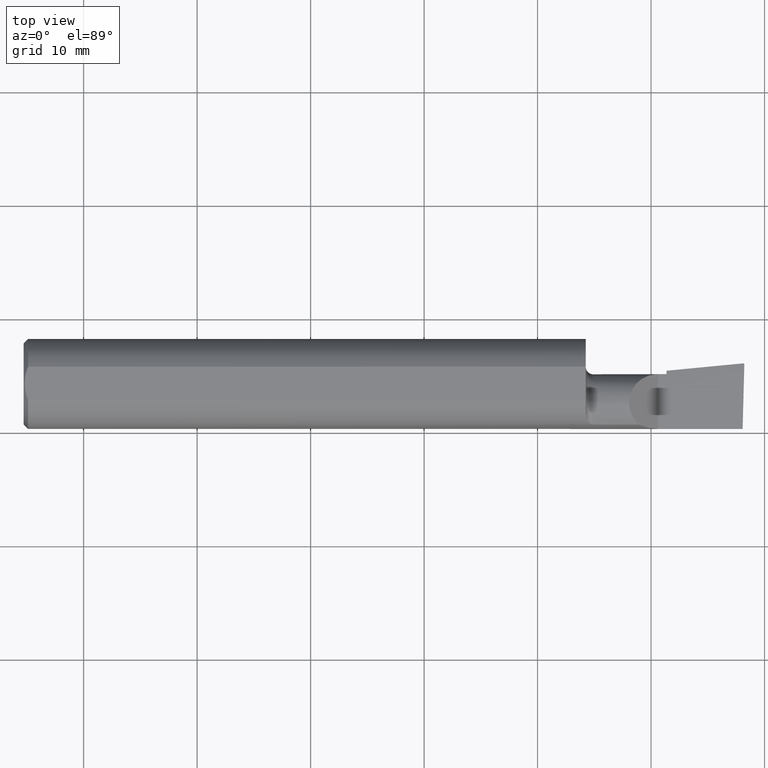
[diagram: clean part render]
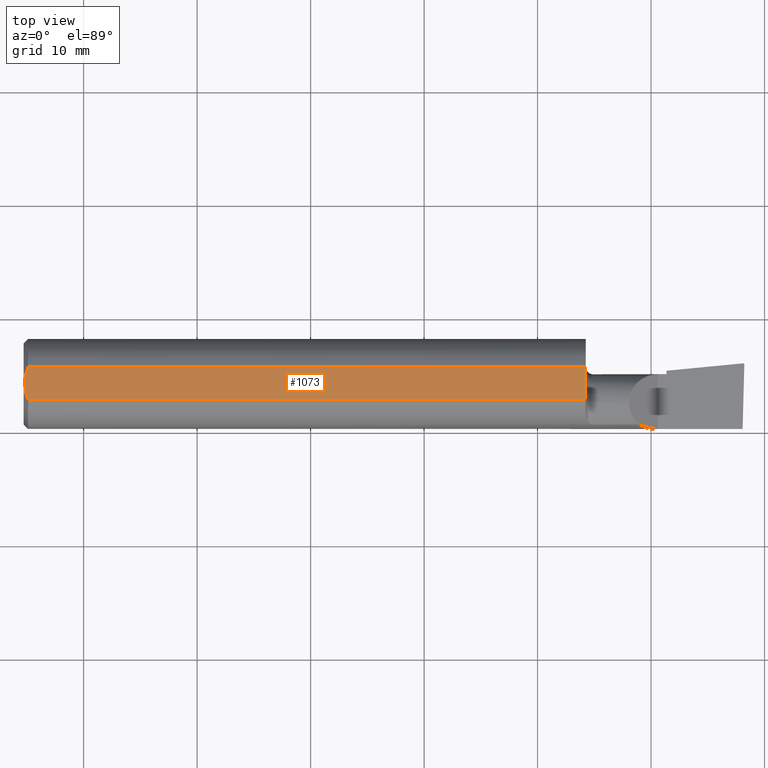
[diagram: same view with one face highlighted and labeled with its STEP entity id]
A machine part, top view. The second image highlights one B-rep face of the part: STEP entity #1073.
In plain terms, the highlighted planar face has unit normal (0, 0, -1).
Its self-contained STEP definition (entity closure, byte-faithful):
#32 = CARTESIAN_POINT ( 'NONE',  ( 0.2946835978831989777, -1.227949873118057589, 3.685539999999999150 ) ) ;
#38 = ORIENTED_EDGE ( 'NONE', *, *, #555, .F. ) ;
#59 = DIRECTION ( 'NONE',  ( -0.000000000000000000, 0.000000000000000000, -1.000000000000000000 ) ) ;
#77 = DIRECTION ( 'NONE',  ( 0.000000000000000000, -1.000000000000000000, 0.000000000000000000 ) ) ;
#116 = CARTESIAN_POINT ( 'NONE',  ( 63.50000000000000000, -1.462034237629201039, 3.685539999999999150 ) ) ;
#117 = CARTESIAN_POINT ( 'NONE',  ( 49.53000000000000114, -1.462034237629201483, 3.685539999999999150 ) ) ;
#136 = VERTEX_POINT ( 'NONE', #817 ) ;
#205 = CARTESIAN_POINT ( 'NONE',  ( 0.2247358976179796297, -0.9898225455501730163, 3.685539999999998706 ) ) ;
#219 = CARTESIAN_POINT ( 'NONE',  ( 0.3809999999999924558, 1.462034237629201039, 3.685539999999999150 ) ) ;
#239 = FACE_OUTER_BOUND ( 'NONE', #457, .T. ) ;
#246 = PLANE ( 'NONE',  #839 ) ;
#253 = VECTOR ( 'NONE', #77, 1000.000000000000000 ) ;
#266 = VERTEX_POINT ( 'NONE', #387 ) ;
#288 = CARTESIAN_POINT ( 'NONE',  ( 0.1015999999999284698, -0.2510152873235154125, 3.685539999999999150 ) ) ;
#295 = DIRECTION ( 'NONE',  ( -1.000000000000000000, -0.000000000000000000, -0.000000000000000000 ) ) ;
#324 = EDGE_CURVE ( 'NONE', #511, #1091, #1006, .T. ) ;
#330 = CARTESIAN_POINT ( 'NONE',  ( 0.1015999999999948056, 3.500044931498621813E-16, 3.685539999999999150 ) ) ;
#368 = B_SPLINE_CURVE_WITH_KNOTS ( 'NONE', 3,
 ( #1149, #288, #516, #205, #32, #592 ),
 .UNSPECIFIED., .F., .F.,
 ( 4, 2, 4 ),
 ( 0.004431269906162986494, 0.005173847132308764286, 0.005916424358454542079 ),
 .UNSPECIFIED. ) ;
#373 = ORIENTED_EDGE ( 'NONE', *, *, #756, .F. ) ;
#387 = CARTESIAN_POINT ( 'NONE',  ( 0.3809999999999924558, -1.462034237629201039, 3.685539999999999150 ) ) ;
#408 = CARTESIAN_POINT ( 'NONE',  ( 0.2235145214959431414, 0.9851334071146859994, 3.685539999999999594 ) ) ;
#419 = VERTEX_POINT ( 'NONE', #117 ) ;
#457 = EDGE_LOOP ( 'NONE', ( #1100, #38, #617, #905, #373 ) ) ;
#460 = CARTESIAN_POINT ( 'NONE',  ( 49.53000000000000114, 2.540000000000000480, 3.685539999999999150 ) ) ;
#478 = VECTOR ( 'NONE', #295, 1000.000000000000000 ) ;
#511 = VERTEX_POINT ( 'NONE', #533 ) ;
#516 = CARTESIAN_POINT ( 'NONE',  ( 0.1280887710546985137, -0.5028858476047466386, 3.685539999999999594 ) ) ;
#533 = CARTESIAN_POINT ( 'NONE',  ( 0.3809999999999924558, 1.462034237629201039, 3.685539999999999150 ) ) ;
#541 = LINE ( 'NONE', #1112, #838 ) ;
#555 = EDGE_CURVE ( 'NONE', #511, #136, #541, .T. ) ;
#592 = CARTESIAN_POINT ( 'NONE',  ( 0.3809999999999924558, -1.462034237629201039, 3.685539999999999150 ) ) ;
#617 = ORIENTED_EDGE ( 'NONE', *, *, #324, .T. ) ;
#642 = DIRECTION ( 'NONE',  ( -1.000000000000000000, 0.000000000000000000, 0.000000000000000000 ) ) ;
#644 = DIRECTION ( 'NONE',  ( 1.000000000000000000, 0.000000000000000000, 0.000000000000000000 ) ) ;
#756 = EDGE_CURVE ( 'NONE', #419, #266, #779, .T. ) ;
#779 = LINE ( 'NONE', #116, #478 ) ;
#817 = CARTESIAN_POINT ( 'NONE',  ( 49.53000000000000114, 1.462034237629201039, 3.685539999999999150 ) ) ;
#823 = CARTESIAN_POINT ( 'NONE',  ( 0.000000000000000000, 2.540000000000000480, 3.685539999999999150 ) ) ;
#838 = VECTOR ( 'NONE', #644, 1000.000000000000000 ) ;
#839 = AXIS2_PLACEMENT_3D ( 'NONE', #823, #59, #642 ) ;
#886 = CARTESIAN_POINT ( 'NONE',  ( 0.1015999999999299547, 0.2511217935535139389, 3.685539999999999150 ) ) ;
#894 = CARTESIAN_POINT ( 'NONE',  ( 0.1274433735584585836, 0.4981409861471362555, 3.685539999999998706 ) ) ;
#905 = ORIENTED_EDGE ( 'NONE', *, *, #933, .T. ) ;
#933 = EDGE_CURVE ( 'NONE', #1091, #266, #368, .T. ) ;
#959 = CARTESIAN_POINT ( 'NONE',  ( 0.1015999999999948056, 3.500044931498621813E-16, 3.685539999999999150 ) ) ;
#1006 = B_SPLINE_CURVE_WITH_KNOTS ( 'NONE', 3,
 ( #219, #1087, #408, #894, #886, #959 ),
 .UNSPECIFIED., .F., .F.,
 ( 4, 2, 4 ),
 ( 0.002945485300212928158, 0.003688377603187957543, 0.004431269906162986494 ),
 .UNSPECIFIED. ) ;
#1073 = ADVANCED_FACE ( 'NONE', ( #239 ), #246, .F. ) ;
#1087 = CARTESIAN_POINT ( 'NONE',  ( 0.2941137992624218711, 1.226404617004863917, 3.685539999999999150 ) ) ;
#1091 = VERTEX_POINT ( 'NONE', #330 ) ;
#1100 = ORIENTED_EDGE ( 'NONE', *, *, #1158, .F. ) ;
#1112 = CARTESIAN_POINT ( 'NONE',  ( 63.50000000000000000, 1.462034237629201039, 3.685539999999999150 ) ) ;
#1149 = CARTESIAN_POINT ( 'NONE',  ( 0.1015999999999948056, 3.500044931498621813E-16, 3.685539999999999150 ) ) ;
#1158 = EDGE_CURVE ( 'NONE', #136, #419, #1222, .T. ) ;
#1222 = LINE ( 'NONE', #460, #253 ) ;